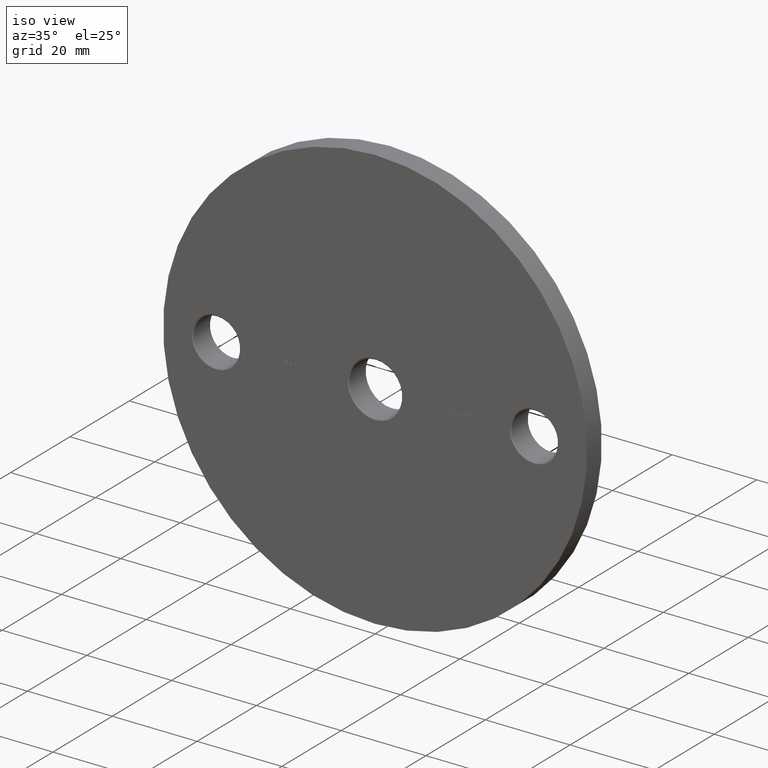
[diagram: clean part render]
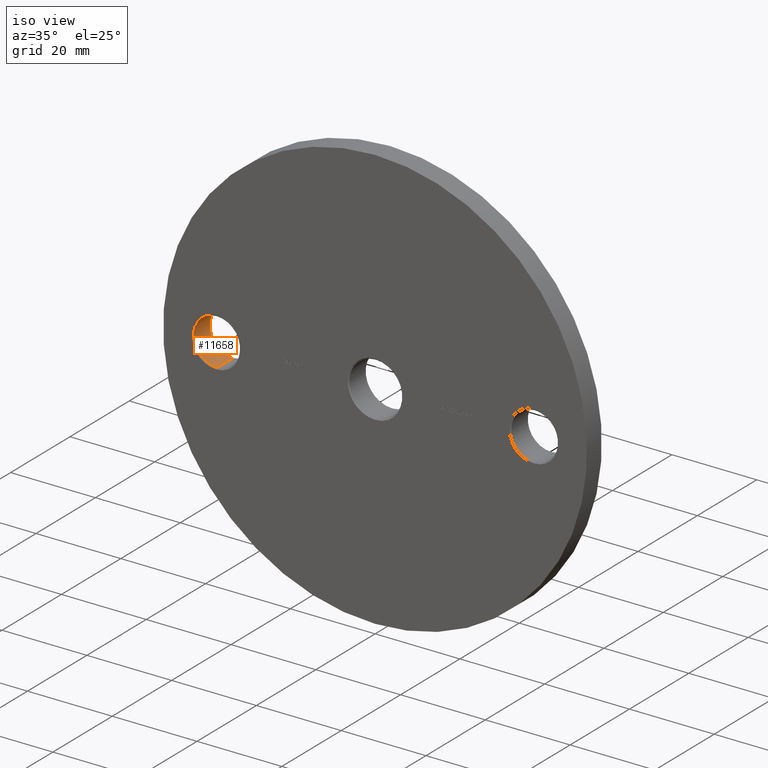
[diagram: same view with one face highlighted and labeled with its STEP entity id]
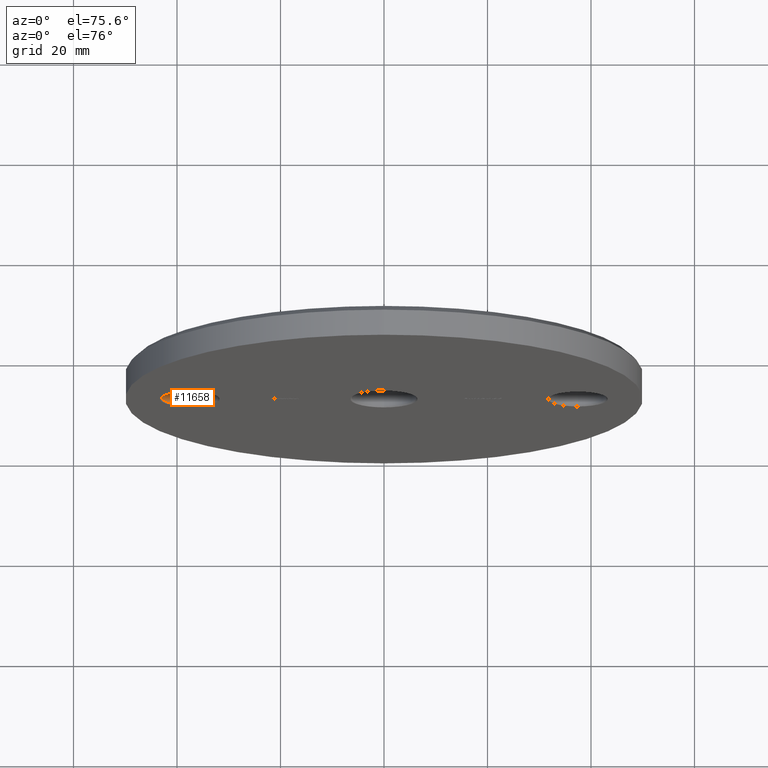
[diagram: same view with one face highlighted and labeled with its STEP entity id]
A machine part, iso view. The second image highlights one B-rep face of the part: STEP entity #11658.
A second angle (auxiliary view) of the same face is appended — the face is thin or edge-on in the first view.
In plain terms, the highlighted cylindrical surface (edge-blend (fillet) strip) has radius 5.5 mm, axis along (-0, -1, -0).
Its self-contained STEP definition (entity closure, byte-faithful):
#908 = DIRECTION ( 'NONE',  ( -0.000000000000000000, -1.000000000000000000, -0.000000000000000000 ) ) ;
#1290 = DIRECTION ( 'NONE',  ( 0.000000000000000000, 0.000000000000000000, 1.000000000000000000 ) ) ;
#1410 = LINE ( 'NONE', #6399, #5863 ) ;
#1503 = EDGE_CURVE ( 'NONE', #1685, #5920, #13749, .T. ) ;
#1506 = EDGE_CURVE ( 'NONE', #12843, #5920, #1410, .T. ) ;
#1619 = CYLINDRICAL_SURFACE ( 'NONE', #11645, 5.499999999999996447 ) ;
#1685 = VERTEX_POINT ( 'NONE', #6496 ) ;
#1963 = CIRCLE ( 'NONE', #8445, 5.499999999999996447 ) ;
#2218 = ORIENTED_EDGE ( 'NONE', *, *, #9117, .T. ) ;
#2488 = VECTOR ( 'NONE', #11561, 1000.000000000000000 ) ;
#2519 = CARTESIAN_POINT ( 'NONE',  ( -37.50000000000000000, 5.749999999999985789, 0.000000000000000000 ) ) ;
#2829 = ORIENTED_EDGE ( 'NONE', *, *, #1506, .F. ) ;
#3428 = DIRECTION ( 'NONE',  ( -0.000000000000000000, -1.000000000000000000, -0.000000000000000000 ) ) ;
#3910 = CARTESIAN_POINT ( 'NONE',  ( -37.50000000000000000, 6.000000000000000000, 5.499999999999996447 ) ) ;
#3975 = CARTESIAN_POINT ( 'NONE',  ( -37.50000000000000000, 5.749999999999985789, -5.499999999999996447 ) ) ;
#4736 = DIRECTION ( 'NONE',  ( 0.000000000000000000, 1.000000000000000000, 0.000000000000000000 ) ) ;
#4897 = ORIENTED_EDGE ( 'NONE', *, *, #11186, .T. ) ;
#5213 = CARTESIAN_POINT ( 'NONE',  ( -37.50000000000000000, 5.749999999999985789, 5.499999999999996447 ) ) ;
#5863 = VECTOR ( 'NONE', #8570, 1000.000000000000000 ) ;
#5920 = VERTEX_POINT ( 'NONE', #8441 ) ;
#6251 = FACE_OUTER_BOUND ( 'NONE', #12241, .T. ) ;
#6399 = CARTESIAN_POINT ( 'NONE',  ( -37.50000000000000000, 6.000000000000000000, -5.499999999999996447 ) ) ;
#6496 = CARTESIAN_POINT ( 'NONE',  ( -37.50000000000000000, 0.2500000000000036637, 5.499999999999996447 ) ) ;
#6999 = VERTEX_POINT ( 'NONE', #5213 ) ;
#7492 = ORIENTED_EDGE ( 'NONE', *, *, #1503, .T. ) ;
#8045 = DIRECTION ( 'NONE',  ( 0.000000000000000000, 0.000000000000000000, -1.000000000000000000 ) ) ;
#8441 = CARTESIAN_POINT ( 'NONE',  ( -37.50000000000000000, 0.2500000000000036637, -5.499999999999996447 ) ) ;
#8445 = AXIS2_PLACEMENT_3D ( 'NONE', #2519, #4736, #1290 ) ;
#8570 = DIRECTION ( 'NONE',  ( -0.000000000000000000, -1.000000000000000000, -0.000000000000000000 ) ) ;
#8673 = LINE ( 'NONE', #3910, #2488 ) ;
#8904 = CARTESIAN_POINT ( 'NONE',  ( -37.50000000000000000, 6.000000000000000000, 0.000000000000000000 ) ) ;
#9117 = EDGE_CURVE ( 'NONE', #6999, #1685, #8673, .T. ) ;
#11186 = EDGE_CURVE ( 'NONE', #12843, #6999, #1963, .T. ) ;
#11561 = DIRECTION ( 'NONE',  ( -0.000000000000000000, -1.000000000000000000, -0.000000000000000000 ) ) ;
#11645 = AXIS2_PLACEMENT_3D ( 'NONE', #8904, #3428, #8045 ) ;
#11658 = ADVANCED_FACE ( 'NONE', ( #6251 ), #1619, .F. ) ;
#12241 = EDGE_LOOP ( 'NONE', ( #4897, #2218, #7492, #2829 ) ) ;
#12843 = VERTEX_POINT ( 'NONE', #3975 ) ;
#13716 = AXIS2_PLACEMENT_3D ( 'NONE', #14027, #908, #14107 ) ;
#13749 = CIRCLE ( 'NONE', #13716, 5.499999999999996447 ) ;
#14027 = CARTESIAN_POINT ( 'NONE',  ( -37.50000000000000000, 0.2500000000000036637, 0.000000000000000000 ) ) ;
#14107 = DIRECTION ( 'NONE',  ( 0.000000000000000000, 0.000000000000000000, 1.000000000000000000 ) ) ;